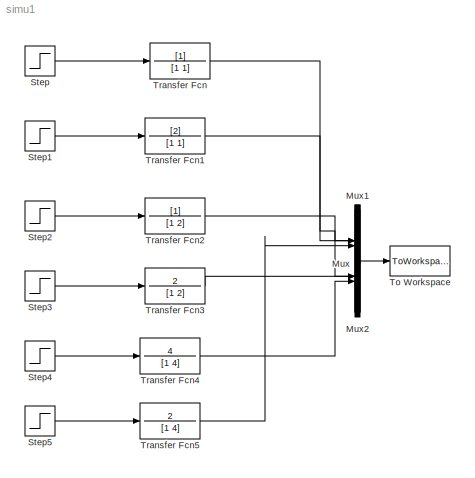
MODEL simu1
KIND model
BLOCK [Mux] Mux
  DisplayOption = bar
  Inputs = 2
  Ports = [2, 1]
  SID = 13
BLOCK [Mux] Mux1
  DisplayOption = bar
  Inputs = 2
  Ports = [2, 1]
  SID = 17
BLOCK [Mux] Mux2
  DisplayOption = bar
  Inputs = 2
  Ports = [2, 1]
  SID = 18
BLOCK [Step] Step
  SID = 1
  SampleTime = 0
  Time = 0
BLOCK [Step] Step1
  SID = 2
  SampleTime = 0
  Time = 0
BLOCK [Step] Step2
  SID = 3
  SampleTime = 0
  Time = 0
BLOCK [Step] Step3
  SID = 4
  SampleTime = 0
  Time = 0
BLOCK [Step] Step4
  SID = 5
  SampleTime = 0
  Time = 0
BLOCK [Step] Step5
  SID = 6
  SampleTime = 0
  Time = 0
BLOCK [ToWorkspace] To Workspace
  MaxDataPoints = inf
  Ports = [1]
  SID = 19
  SampleTime = -1
  SaveFormat = Array
  VariableName = x
BLOCK [TransferFcn] Transfer Fcn
  Denominator = [1 1]
  SID = 7
BLOCK [TransferFcn] Transfer Fcn1
  Denominator = [1 1]
  Numerator = [2]
  SID = 8
BLOCK [TransferFcn] Transfer Fcn2
  Denominator = [1 2]
  SID = 9
BLOCK [TransferFcn] Transfer Fcn3
  Denominator = [1 2]
  Numerator = 2
  SID = 10
BLOCK [TransferFcn] Transfer Fcn4
  Denominator = [1 4]
  Numerator = 4
  SID = 11
BLOCK [TransferFcn] Transfer Fcn5
  Denominator = [1 4]
  Numerator = 2
  SID = 16
LINE Mux:1 -> To Workspace:1
LINE Step1:1 -> Transfer Fcn1:1
LINE Step2:1 -> Transfer Fcn2:1
LINE Step3:1 -> Transfer Fcn3:1
LINE Step4:1 -> Transfer Fcn4:1
LINE Step5:1 -> Transfer Fcn5:1
LINE Step:1 -> Transfer Fcn:1
LINE Transfer Fcn1:1 -> Mux2:1
LINE Transfer Fcn2:1 -> Mux1:1
LINE Transfer Fcn3:1 -> Mux1:2
LINE Transfer Fcn4:1 -> Mux:2
LINE Transfer Fcn5:1 -> Mux:1
LINE Transfer Fcn:1 -> Mux2:2
